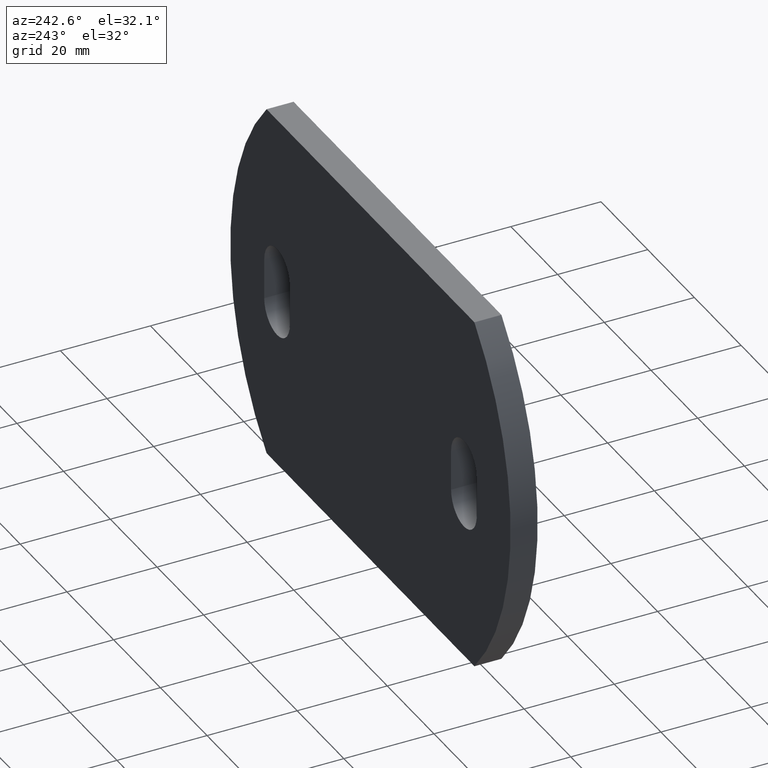
[diagram: clean part render]
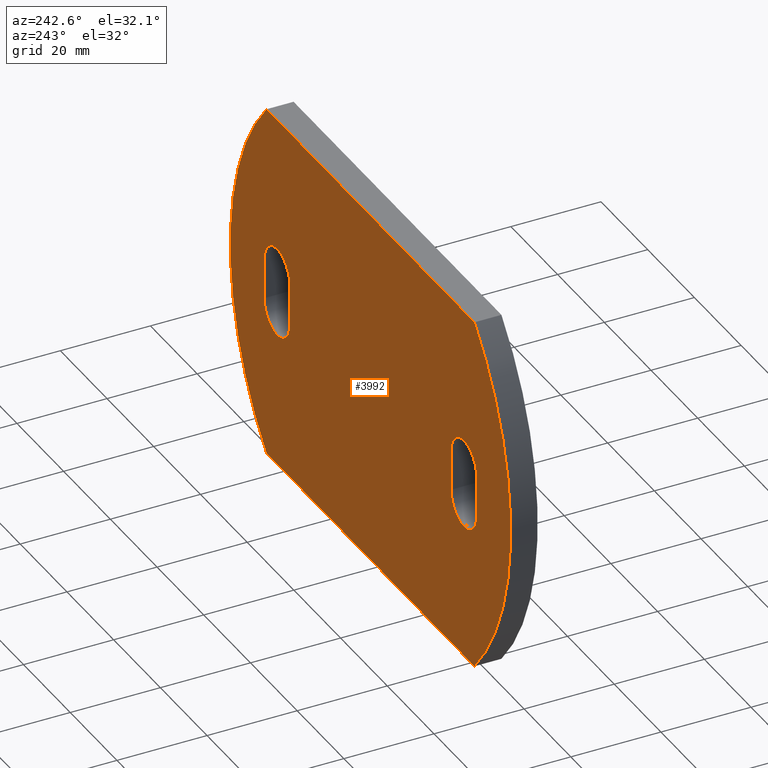
[diagram: same view with one face highlighted and labeled with its STEP entity id]
A machine part, auxiliary view. The second image highlights one B-rep face of the part: STEP entity #3992.
In plain terms, the highlighted planar face has unit normal (0, 1, 0).
Its self-contained STEP definition (entity closure, byte-faithful):
#21 = AXIS2_PLACEMENT_3D ( 'NONE', #5832, #1454, #8297 ) ;
#32 = DIRECTION ( 'NONE',  ( 0.000000000000000000, 1.000000000000000000, 0.000000000000000000 ) ) ;
#129 = VERTEX_POINT ( 'NONE', #1172 ) ;
#178 = VERTEX_POINT ( 'NONE', #5600 ) ;
#262 = ORIENTED_EDGE ( 'NONE', *, *, #5821, .F. ) ;
#308 = DIRECTION ( 'NONE',  ( 0.000000000000000000, 0.000000000000000000, 1.000000000000000000 ) ) ;
#352 = DIRECTION ( 'NONE',  ( 0.000000000000000000, 1.000000000000000000, 0.000000000000000000 ) ) ;
#401 = EDGE_LOOP ( 'NONE', ( #3815, #262, #1570, #9543, #1002 ) ) ;
#405 = CARTESIAN_POINT ( 'NONE',  ( -40.00000000000000000, 3.000000000000000000, -4.499999999999998224 ) ) ;
#480 = DIRECTION ( 'NONE',  ( 0.000000000000000000, 1.000000000000000000, 0.000000000000000000 ) ) ;
#483 = CIRCLE ( 'NONE', #1863, 59.36290322580648393 ) ;
#509 = AXIS2_PLACEMENT_3D ( 'NONE', #6932, #5253, #7800 ) ;
#649 = EDGE_LOOP ( 'NONE', ( #10342, #4509, #7150, #9973, #5701 ) ) ;
#715 = DIRECTION ( 'NONE',  ( 0.000000000000000000, 0.000000000000000000, 1.000000000000000000 ) ) ;
#722 = CARTESIAN_POINT ( 'NONE',  ( -0.6370967741935185114, 3.000000000000000000, 0.000000000000000000 ) ) ;
#972 = VERTEX_POINT ( 'NONE', #7157 ) ;
#1000 = CIRCLE ( 'NONE', #10448, 5.499999999999999112 ) ;
#1002 = ORIENTED_EDGE ( 'NONE', *, *, #8212, .F. ) ;
#1172 = CARTESIAN_POINT ( 'NONE',  ( -34.50000000000000000, 3.000000000000000000, -4.500000000000000000 ) ) ;
#1289 = EDGE_CURVE ( 'NONE', #10139, #178, #9010, .T. ) ;
#1305 = EDGE_CURVE ( 'NONE', #5882, #7675, #483, .T. ) ;
#1399 = VECTOR ( 'NONE', #2633, 1000.000000000000000 ) ;
#1413 = CIRCLE ( 'NONE', #10730, 5.499999999999991118 ) ;
#1454 = DIRECTION ( 'NONE',  ( 0.000000000000000000, 1.000000000000000000, 0.000000000000000000 ) ) ;
#1570 = ORIENTED_EDGE ( 'NONE', *, *, #10880, .F. ) ;
#1730 = ORIENTED_EDGE ( 'NONE', *, *, #4407, .T. ) ;
#1863 = AXIS2_PLACEMENT_3D ( 'NONE', #10226, #4322, #10290 ) ;
#1870 = CARTESIAN_POINT ( 'NONE',  ( 45.49999999999999289, 3.000000000000000000, 4.499999999999998224 ) ) ;
#1933 = CARTESIAN_POINT ( 'NONE',  ( -40.00000000000000000, 3.000000000000000000, -9.999999999999994671 ) ) ;
#2130 = VERTEX_POINT ( 'NONE', #6528 ) ;
#2247 = DIRECTION ( 'NONE',  ( -1.000000000000000000, -0.000000000000000000, 3.118604001756057919E-16 ) ) ;
#2320 = CARTESIAN_POINT ( 'NONE',  ( -44.50000000000000711, 3.000000000000000000, -40.00000000000000000 ) ) ;
#2357 = DIRECTION ( 'NONE',  ( 0.000000000000000000, 1.000000000000000000, 0.000000000000000000 ) ) ;
#2617 = DIRECTION ( 'NONE',  ( 0.000000000000000000, 0.000000000000000000, 1.000000000000000000 ) ) ;
#2633 = DIRECTION ( 'NONE',  ( 1.000000000000000000, 0.000000000000000000, 3.118604001756057919E-16 ) ) ;
#2722 = AXIS2_PLACEMENT_3D ( 'NONE', #7993, #352, #308 ) ;
#2732 = VERTEX_POINT ( 'NONE', #5960 ) ;
#2740 = CARTESIAN_POINT ( 'NONE',  ( -44.50000000000000711, 3.000000000000000000, -40.00000000000000000 ) ) ;
#2814 = VERTEX_POINT ( 'NONE', #4600 ) ;
#3071 = CIRCLE ( 'NONE', #2722, 5.499999999999991118 ) ;
#3168 = EDGE_CURVE ( 'NONE', #7280, #10139, #3071, .T. ) ;
#3322 = DIRECTION ( 'NONE',  ( 0.000000000000000000, 1.000000000000000000, 0.000000000000000000 ) ) ;
#3355 = CARTESIAN_POINT ( 'NONE',  ( -45.50000000000000000, 3.000000000000000000, 4.499999999999999112 ) ) ;
#3392 = CARTESIAN_POINT ( 'NONE',  ( 45.49999999999999289, 3.000000000000000000, -4.499999999999998224 ) ) ;
#3431 = ORIENTED_EDGE ( 'NONE', *, *, #7636, .T. ) ;
#3675 = ORIENTED_EDGE ( 'NONE', *, *, #8067, .T. ) ;
#3815 = ORIENTED_EDGE ( 'NONE', *, *, #9881, .F. ) ;
#3872 = FACE_BOUND ( 'NONE', #649, .T. ) ;
#3901 = CIRCLE ( 'NONE', #5840, 5.499999999999998224 ) ;
#3992 = ADVANCED_FACE ( 'NONE', ( #6807, #3872, #4277 ), #9934, .T. ) ;
#4277 = FACE_BOUND ( 'NONE', #401, .T. ) ;
#4322 = DIRECTION ( 'NONE',  ( 0.000000000000000000, 1.000000000000000000, -0.000000000000000000 ) ) ;
#4350 = CIRCLE ( 'NONE', #7387, 5.499999999999991118 ) ;
#4365 = EDGE_CURVE ( 'NONE', #2732, #129, #10371, .T. ) ;
#4407 = EDGE_CURVE ( 'NONE', #6410, #5348, #7188, .T. ) ;
#4509 = ORIENTED_EDGE ( 'NONE', *, *, #7743, .F. ) ;
#4600 = CARTESIAN_POINT ( 'NONE',  ( 40.00000000000000000, 3.000000000000000000, -9.999999999999989342 ) ) ;
#5161 = CARTESIAN_POINT ( 'NONE',  ( 40.00000000000000000, 3.000000000000000000, -4.499999999999999112 ) ) ;
#5179 = DIRECTION ( 'NONE',  ( -0.000000000000000000, -0.000000000000000000, -1.000000000000000000 ) ) ;
#5180 = CIRCLE ( 'NONE', #21, 5.499999999999998224 ) ;
#5253 = DIRECTION ( 'NONE',  ( 0.000000000000000000, 1.000000000000000000, 0.000000000000000000 ) ) ;
#5257 = VERTEX_POINT ( 'NONE', #1933 ) ;
#5292 = VECTOR ( 'NONE', #2247, 1000.000000000000000 ) ;
#5308 = ORIENTED_EDGE ( 'NONE', *, *, #1305, .T. ) ;
#5348 = VERTEX_POINT ( 'NONE', #6297 ) ;
#5600 = CARTESIAN_POINT ( 'NONE',  ( 45.49999999999999289, 3.000000000000000000, -4.499999999999998224 ) ) ;
#5633 = LINE ( 'NONE', #9080, #9877 ) ;
#5647 = DIRECTION ( 'NONE',  ( 0.000000000000000000, 0.000000000000000000, 1.000000000000000000 ) ) ;
#5701 = ORIENTED_EDGE ( 'NONE', *, *, #3168, .F. ) ;
#5821 = EDGE_CURVE ( 'NONE', #5257, #972, #5180, .T. ) ;
#5832 = CARTESIAN_POINT ( 'NONE',  ( -40.00000000000000000, 3.000000000000000000, -4.499999999999998224 ) ) ;
#5840 = AXIS2_PLACEMENT_3D ( 'NONE', #405, #480, #6404 ) ;
#5882 = VERTEX_POINT ( 'NONE', #9377 ) ;
#5960 = CARTESIAN_POINT ( 'NONE',  ( -34.50000000000000000, 3.000000000000000000, 4.500000000000000000 ) ) ;
#6080 = DIRECTION ( 'NONE',  ( -0.000000000000000000, -0.000000000000000000, -1.000000000000000000 ) ) ;
#6297 = CARTESIAN_POINT ( 'NONE',  ( -44.50000000000000711, 3.000000000000000000, 40.00000000000000000 ) ) ;
#6322 = CARTESIAN_POINT ( 'NONE',  ( 40.00000000000000000, 3.000000000000000000, -4.499999999999999112 ) ) ;
#6404 = DIRECTION ( 'NONE',  ( 0.000000000000000000, 0.000000000000000000, 1.000000000000000000 ) ) ;
#6410 = VERTEX_POINT ( 'NONE', #2740 ) ;
#6507 = EDGE_CURVE ( 'NONE', #178, #2814, #1413, .T. ) ;
#6528 = CARTESIAN_POINT ( 'NONE',  ( 34.50000000000000711, 3.000000000000000000, -4.500000000000000000 ) ) ;
#6807 = FACE_OUTER_BOUND ( 'NONE', #9683, .T. ) ;
#6926 = VECTOR ( 'NONE', #6080, 1000.000000000000000 ) ;
#6932 = CARTESIAN_POINT ( 'NONE',  ( -0.6370967741935185114, 3.000000000000000000, 0.000000000000000000 ) ) ;
#7010 = LINE ( 'NONE', #2320, #5292 ) ;
#7150 = ORIENTED_EDGE ( 'NONE', *, *, #6507, .F. ) ;
#7157 = CARTESIAN_POINT ( 'NONE',  ( -45.50000000000000000, 3.000000000000000000, -4.500000000000000888 ) ) ;
#7188 = CIRCLE ( 'NONE', #509, 59.36290322580647683 ) ;
#7210 = DIRECTION ( 'NONE',  ( 0.000000000000000000, 1.000000000000000000, 0.000000000000000000 ) ) ;
#7248 = DIRECTION ( 'NONE',  ( 0.000000000000000000, 0.000000000000000000, 1.000000000000000000 ) ) ;
#7280 = VERTEX_POINT ( 'NONE', #10378 ) ;
#7387 = AXIS2_PLACEMENT_3D ( 'NONE', #5161, #32, #2617 ) ;
#7551 = CARTESIAN_POINT ( 'NONE',  ( -40.00000000000000000, 3.000000000000000000, 4.500000000000000000 ) ) ;
#7552 = VERTEX_POINT ( 'NONE', #3355 ) ;
#7636 = EDGE_CURVE ( 'NONE', #5348, #5882, #7791, .T. ) ;
#7675 = VERTEX_POINT ( 'NONE', #9467 ) ;
#7743 = EDGE_CURVE ( 'NONE', #2814, #2130, #4350, .T. ) ;
#7760 = VECTOR ( 'NONE', #7248, 1000.000000000000000 ) ;
#7791 = LINE ( 'NONE', #8420, #1399 ) ;
#7800 = DIRECTION ( 'NONE',  ( 0.000000000000000000, 0.000000000000000000, 1.000000000000000000 ) ) ;
#7993 = CARTESIAN_POINT ( 'NONE',  ( 40.00000000000000000, 3.000000000000000000, 4.499999999999999112 ) ) ;
#8067 = EDGE_CURVE ( 'NONE', #7675, #6410, #7010, .T. ) ;
#8120 = DIRECTION ( 'NONE',  ( 0.000000000000000000, 0.000000000000000000, 1.000000000000000000 ) ) ;
#8212 = EDGE_CURVE ( 'NONE', #7552, #2732, #1000, .T. ) ;
#8289 = DIRECTION ( 'NONE',  ( 0.000000000000000000, -0.000000000000000000, 1.000000000000000000 ) ) ;
#8297 = DIRECTION ( 'NONE',  ( 0.000000000000000000, 0.000000000000000000, 1.000000000000000000 ) ) ;
#8420 = CARTESIAN_POINT ( 'NONE',  ( -44.50000000000000711, 3.000000000000000000, 40.00000000000000000 ) ) ;
#8480 = VECTOR ( 'NONE', #5179, 1000.000000000000000 ) ;
#8714 = CARTESIAN_POINT ( 'NONE',  ( -45.50000000000000000, 3.000000000000000000, -4.500000000000000888 ) ) ;
#9010 = LINE ( 'NONE', #3392, #8480 ) ;
#9080 = CARTESIAN_POINT ( 'NONE',  ( 34.50000000000000711, 3.000000000000000000, -4.500000000000000000 ) ) ;
#9291 = AXIS2_PLACEMENT_3D ( 'NONE', #722, #2357, #8289 ) ;
#9377 = CARTESIAN_POINT ( 'NONE',  ( 44.50000000000000000, 3.000000000000000000, 40.00000000000001421 ) ) ;
#9403 = CARTESIAN_POINT ( 'NONE',  ( -34.50000000000000000, 3.000000000000000000, -4.500000000000000000 ) ) ;
#9467 = CARTESIAN_POINT ( 'NONE',  ( 44.49999999999999289, 3.000000000000000000, -40.00000000000002842 ) ) ;
#9543 = ORIENTED_EDGE ( 'NONE', *, *, #4365, .F. ) ;
#9683 = EDGE_LOOP ( 'NONE', ( #1730, #3431, #5308, #3675 ) ) ;
#9877 = VECTOR ( 'NONE', #5647, 1000.000000000000000 ) ;
#9881 = EDGE_CURVE ( 'NONE', #972, #7552, #10020, .T. ) ;
#9934 = PLANE ( 'NONE',  #9291 ) ;
#9973 = ORIENTED_EDGE ( 'NONE', *, *, #1289, .F. ) ;
#10020 = LINE ( 'NONE', #8714, #7760 ) ;
#10139 = VERTEX_POINT ( 'NONE', #1870 ) ;
#10226 = CARTESIAN_POINT ( 'NONE',  ( 0.6370967741935185114, 3.000000000000000000, -1.560437050526392987E-16 ) ) ;
#10290 = DIRECTION ( 'NONE',  ( 0.000000000000000000, 0.000000000000000000, -1.000000000000000000 ) ) ;
#10342 = ORIENTED_EDGE ( 'NONE', *, *, #10951, .F. ) ;
#10371 = LINE ( 'NONE', #9403, #6926 ) ;
#10378 = CARTESIAN_POINT ( 'NONE',  ( 34.50000000000000711, 3.000000000000000000, 4.499999999999998224 ) ) ;
#10448 = AXIS2_PLACEMENT_3D ( 'NONE', #7551, #3322, #715 ) ;
#10730 = AXIS2_PLACEMENT_3D ( 'NONE', #6322, #7210, #8120 ) ;
#10880 = EDGE_CURVE ( 'NONE', #129, #5257, #3901, .T. ) ;
#10951 = EDGE_CURVE ( 'NONE', #2130, #7280, #5633, .T. ) ;